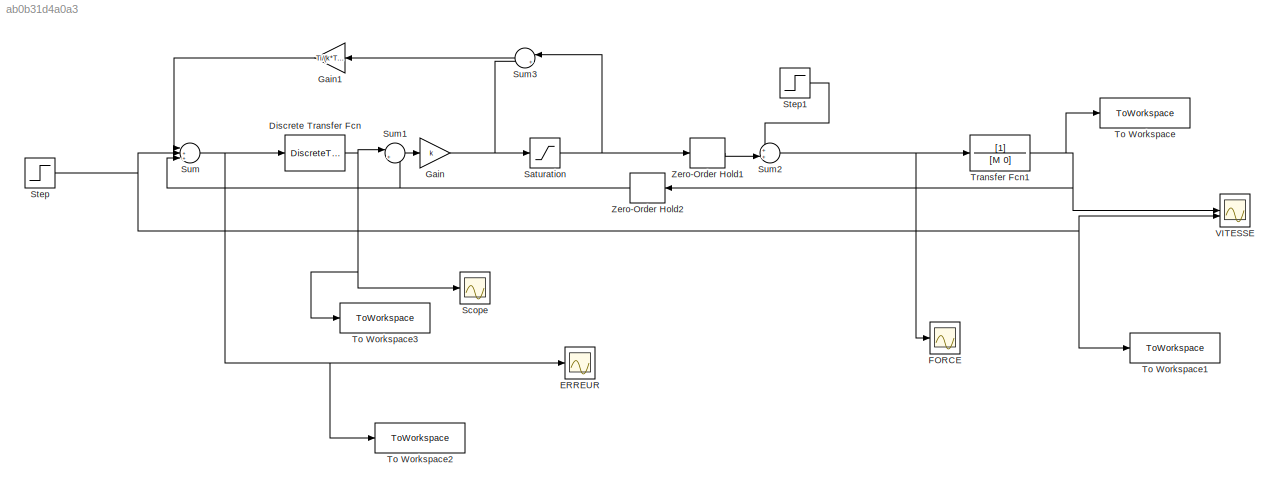
MODEL slx_ab0b31d4a0a3
KIND model
CONFIG AbsTol = auto
CONFIG EnableMultiTasking = off
CONFIG FixedStep = auto
CONFIG MaxStep = auto
CONFIG MinStep = auto
CONFIG RelTol = 1e-3
CONFIG SampleTimeConstraint = Unconstrained
CONFIG SolverName = VariableStepAuto
CONFIG StartTime = 0.0
CONFIG StopTime = 1000
BLOCK [DiscreteTransferFcn] Discrete Transfer Fcn
  Denominator = Ti*[1 -1]
  InputPortMap = u0
  Numerator = [Te]
  SampleTime = Te
BLOCK [Scope] ERREUR
  Floating = off
  NumInputPorts = 1
  ScopeSpecificationString = Simulink.scopes.TimeScopeBlockCfg('CurrentConfiguration', extmgr.ConfigurationSet(extmgr.Configuration('Core','General UI',true),extmgr.Configuration('Core','Source UI',true),extmgr.Configuration('Sources','WiredSimulink',true,'DataLoggingVariableName','ScopeData1'),extmgr.Configuration('Visuals','Time Domain',true,'SerializedDisplays',{struct('MinYLimReal','-15.93374','MaxYLimReal','17.20251','YL...<+1404ch>
BLOCK [Scope] FORCE
  Floating = off
  NumInputPorts = 1
  ScopeSpecificationString = Simulink.scopes.TimeScopeBlockCfg('CurrentConfiguration', extmgr.ConfigurationSet(extmgr.Configuration('Core','General UI',true),extmgr.Configuration('Core','Source UI',true),extmgr.Configuration('Sources','WiredSimulink',true,'DataLoggingVariableName','ScopeData2'),extmgr.Configuration('Visuals','Time Domain',true,'SerializedDisplays',{struct('MinYLimReal','-10680748740212992976596466210525432643...<+3822ch>
BLOCK [Gain] Gain
  Gain = k
BLOCK [Gain] Gain1
  Gain = Ti/(k*Te)
  NameLocation = top
BLOCK [Saturate] Saturation
  UpperLimit = 0.9*M
BLOCK [Scope] Scope
  Floating = off
  NumInputPorts = 1
  ScopeSpecificationString = Simulink.scopes.TimeScopeBlockCfg('CurrentConfiguration', extmgr.ConfigurationSet(extmgr.Configuration('Core','General UI',true),extmgr.Configuration('Core','Source UI',true),extmgr.Configuration('Sources','WiredSimulink',true,'DataLoggingVariableName','ScopeData3'),extmgr.Configuration('Visuals','Time Domain',true,'SerializedDisplays',{struct('MinYLimReal','-116.72075','MaxYLimReal','167.68603','...<+1394ch>
BLOCK [Step] Step
  After = 50/3.6
  SampleTime = 0
  Time = 0
BLOCK [Step] Step1
  After = 0
  SampleTime = 0
  Time = 4
BLOCK [Sum] Sum
  Inputs = |++-
BLOCK [Sum] Sum1
  Inputs = |+-
BLOCK [Sum] Sum2
  Inputs = ++|
BLOCK [Sum] Sum3
  Inputs = |+-
  NameLocation = top
BLOCK [ToWorkspace] To Workspace
  FixptAsFi = on
  MaxDataPoints = inf
  SampleTime = -1
  SaveFormat = Timeseries
  VariableName = v
BLOCK [ToWorkspace] To Workspace1
  FixptAsFi = on
  MaxDataPoints = inf
  SampleTime = -1
  SaveFormat = Timeseries
  VariableName = vr
BLOCK [ToWorkspace] To Workspace2
  FixptAsFi = on
  MaxDataPoints = inf
  SampleTime = -1
  SaveFormat = Timeseries
  VariableName = erreur
BLOCK [ToWorkspace] To Workspace3
  FixptAsFi = on
  MaxDataPoints = inf
  SampleTime = -1
  SaveFormat = Timeseries
  VariableName = I
BLOCK [TransferFcn] Transfer Fcn1
  Denominator = [M 0]
BLOCK [Scope] VITESSE
  Floating = off
  NumInputPorts = 2
  ScopeSpecificationString = Simulink.scopes.TimeScopeBlockCfg('CurrentConfiguration', extmgr.ConfigurationSet(extmgr.Configuration('Core','General UI',true),extmgr.Configuration('Core','Source UI',true),extmgr.Configuration('Sources','WiredSimulink',true),extmgr.Configuration('Visuals','Time Domain',true,'SerializedDisplays',{struct('MinYLimReal','-1.73611','MaxYLimReal','15.625','YLabelReal','','MinYLimMag','0.00000','MaxYL...<+1365ch>
BLOCK [ZeroOrderHold] Zero-Order Hold1
  SampleTime = Te
BLOCK [ZeroOrderHold] Zero-Order Hold2
  NameLocation = top
  SampleTime = Te
NET Discrete Transfer Fcn:1 -> Scope:1, Sum1:1, To Workspace3:1
LINE Gain1:1 -> Sum:1
NET Gain:1 -> Saturation:1, Sum3:2
NET Saturation:1 -> Sum3:1, Zero-Order Hold1:1
LINE Step1:1 -> Sum2:1
NET Step:1 -> Sum:2, To Workspace1:1, VITESSE:2
LINE Sum1:1 -> Gain:1
NET Sum2:1 -> FORCE:1, Transfer Fcn1:1
LINE Sum3:1 -> Gain1:1
NET Sum:1 -> Discrete Transfer Fcn:1, ERREUR:1, To Workspace2:1
NET Transfer Fcn1:1 -> To Workspace:1, VITESSE:1, Zero-Order Hold2:1
LINE Zero-Order Hold1:1 -> Sum2:2
NET Zero-Order Hold2:1 -> Sum1:2, Sum:3
note: NET lines group one-source signal fan-out (src -> all destinations, sorted); 1:1 wires keep LINE
